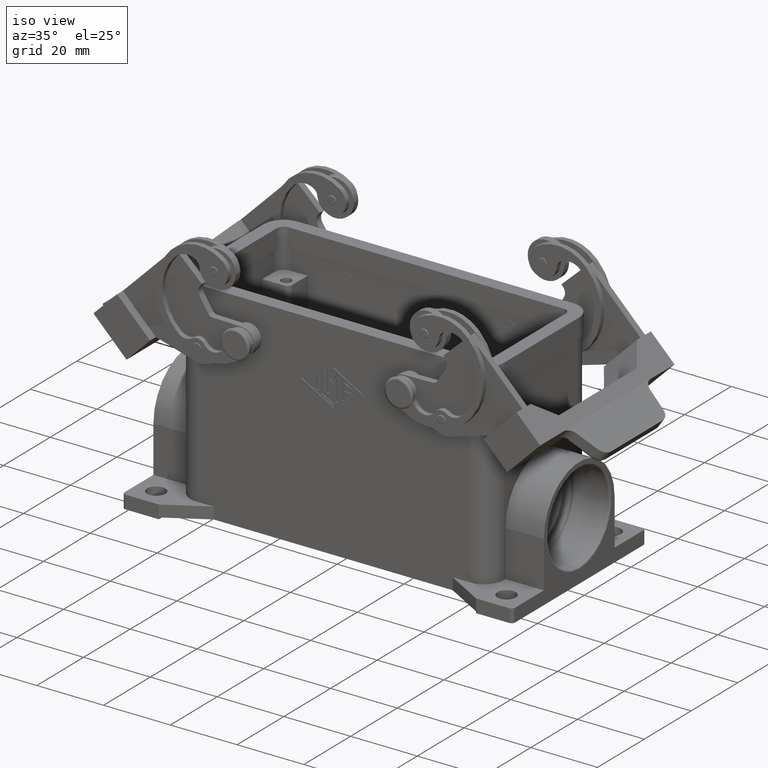
[diagram: clean part render]
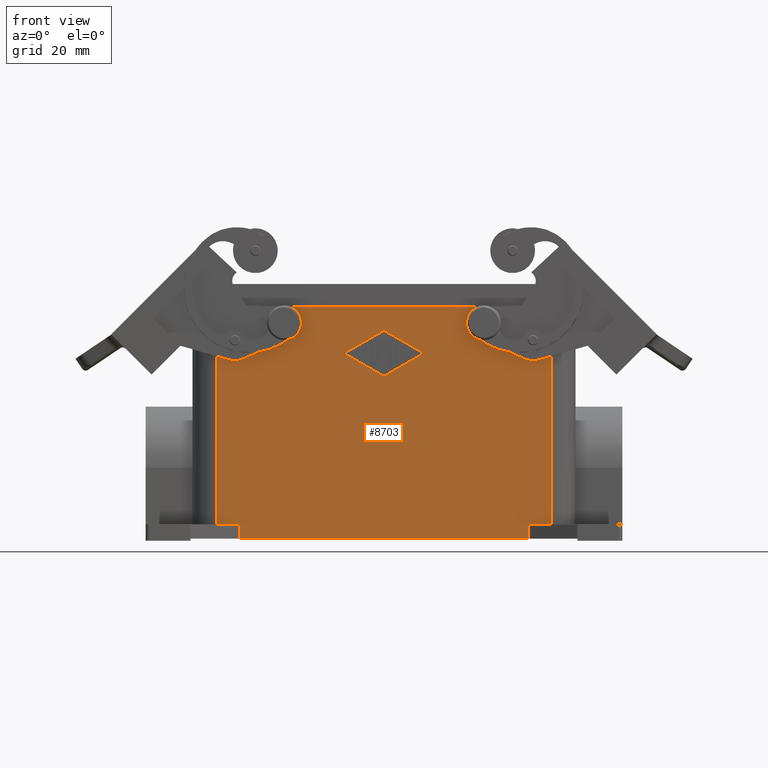
[diagram: tour spotlight — one face highlighted and labeled with its STEP entity id]
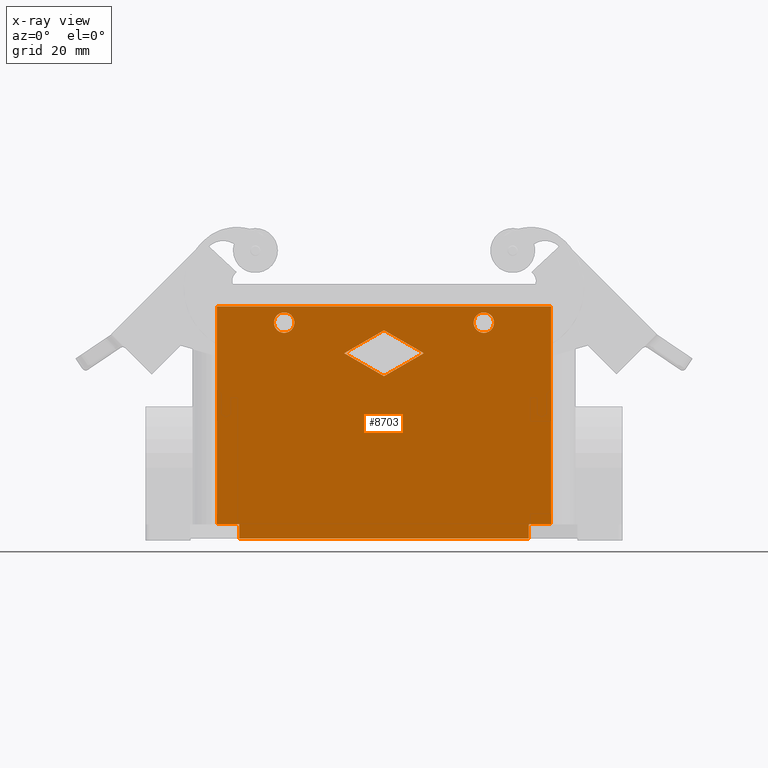
[diagram: x-ray of the same camera — body ghosted, this tour face saturated]
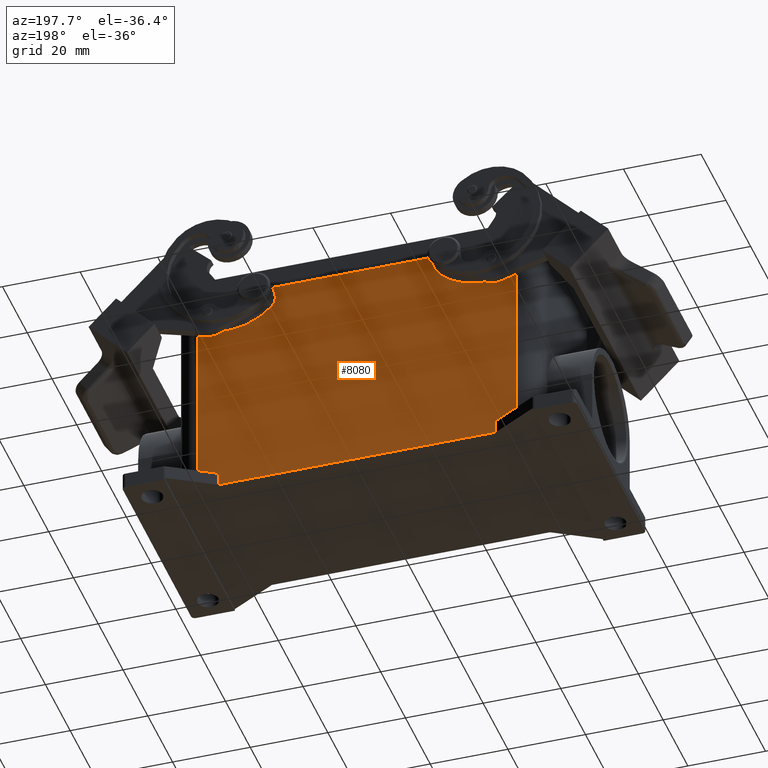
[diagram: tour spotlight — one face highlighted and labeled with its STEP entity id]
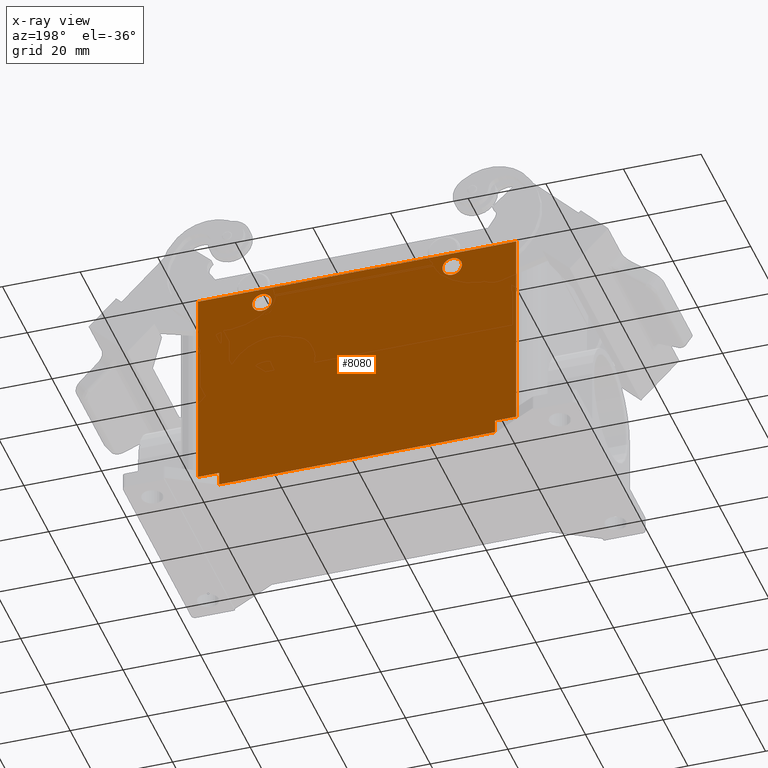
[diagram: x-ray of the same camera — body ghosted, this tour face saturated]
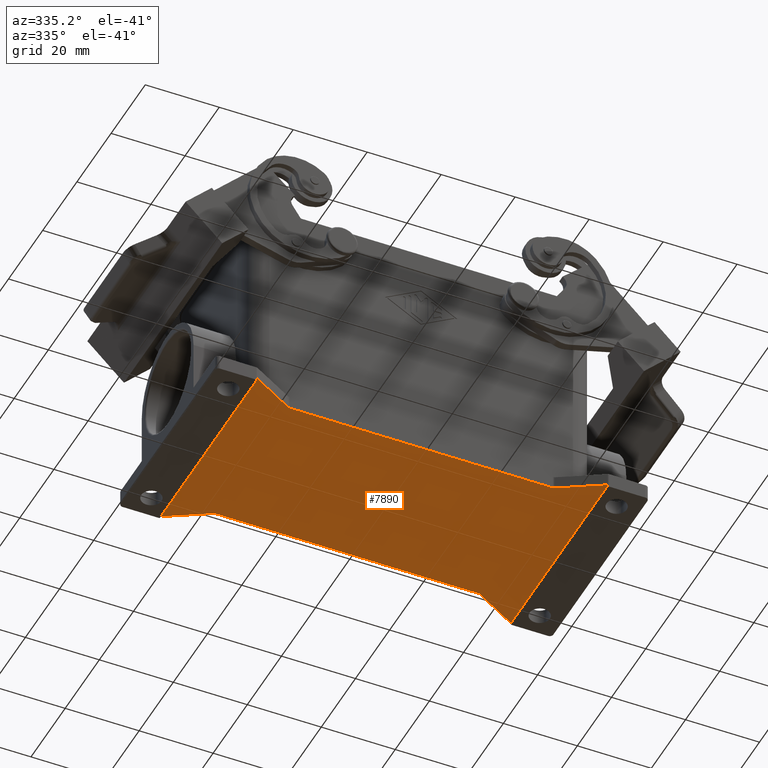
[diagram: tour spotlight — one face highlighted and labeled with its STEP entity id]
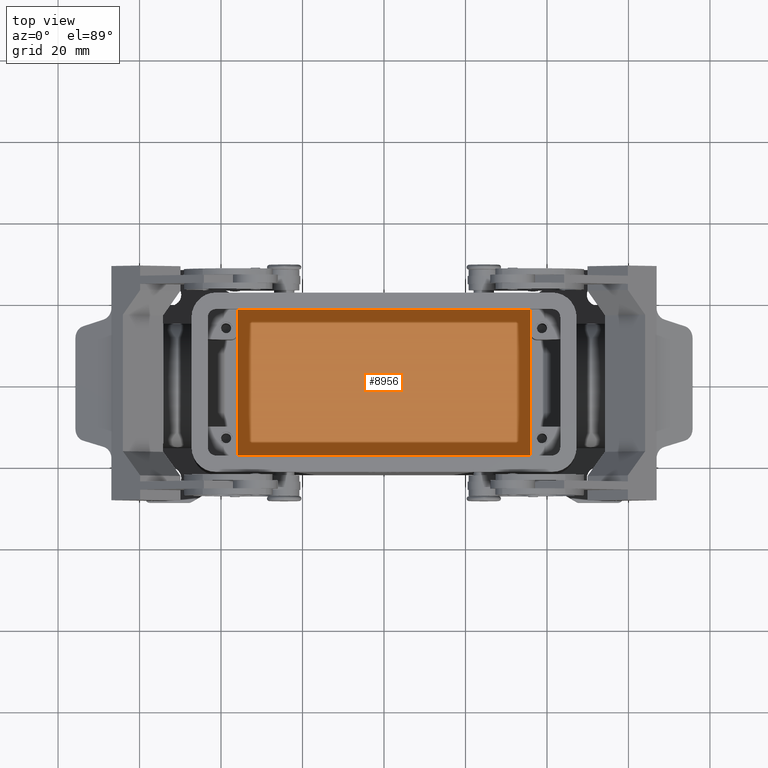
[diagram: tour spotlight — one face highlighted and labeled with its STEP entity id]
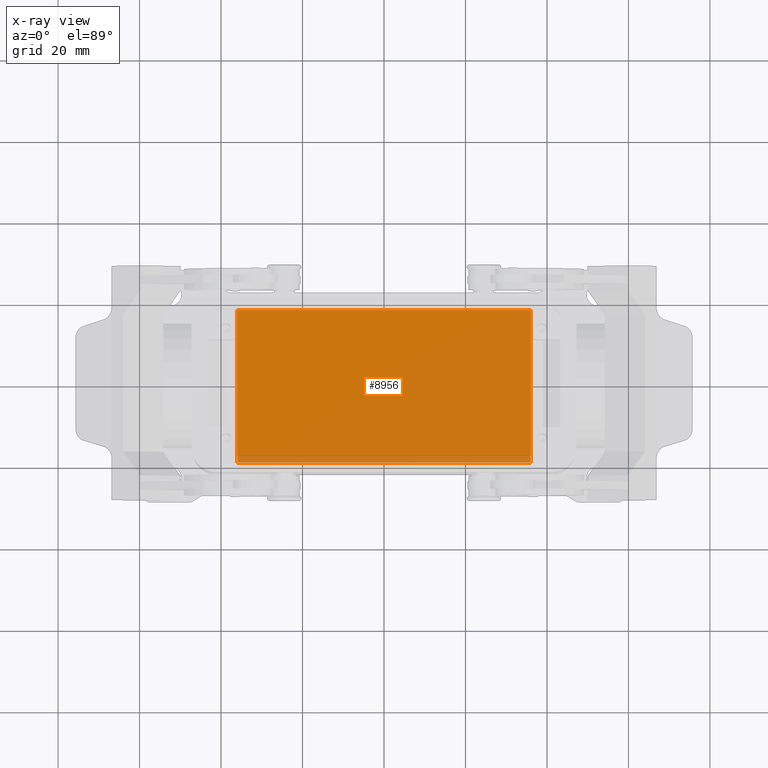
[diagram: x-ray of the same camera — body ghosted, this tour face saturated]
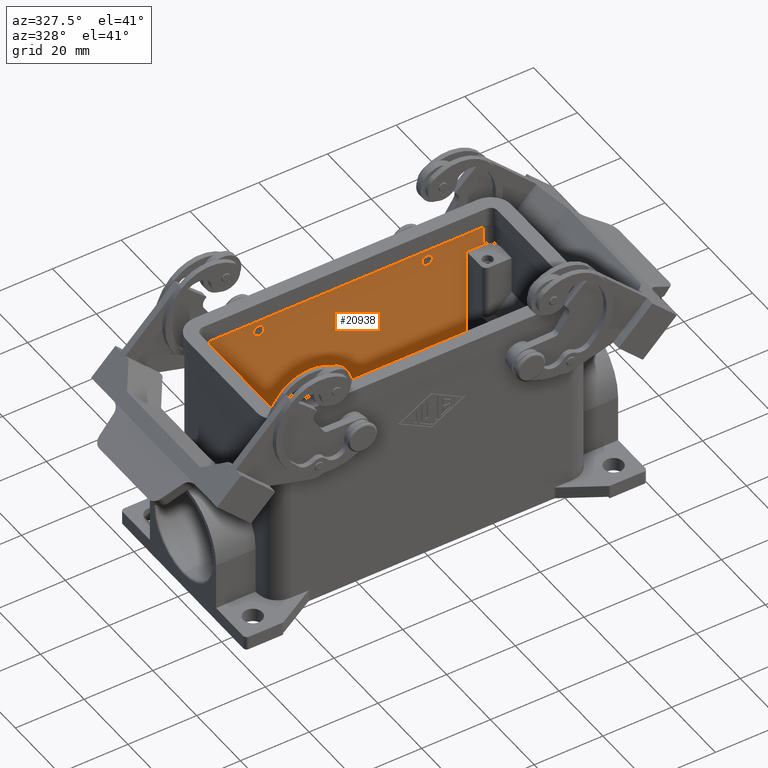
[diagram: tour spotlight — one face highlighted and labeled with its STEP entity id]
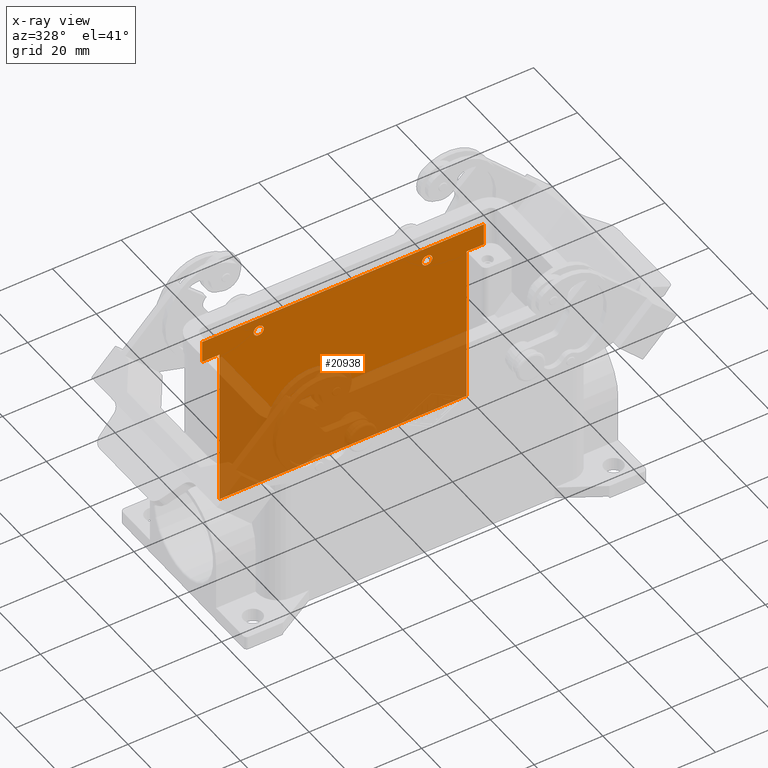
[diagram: x-ray of the same camera — body ghosted, this tour face saturated]
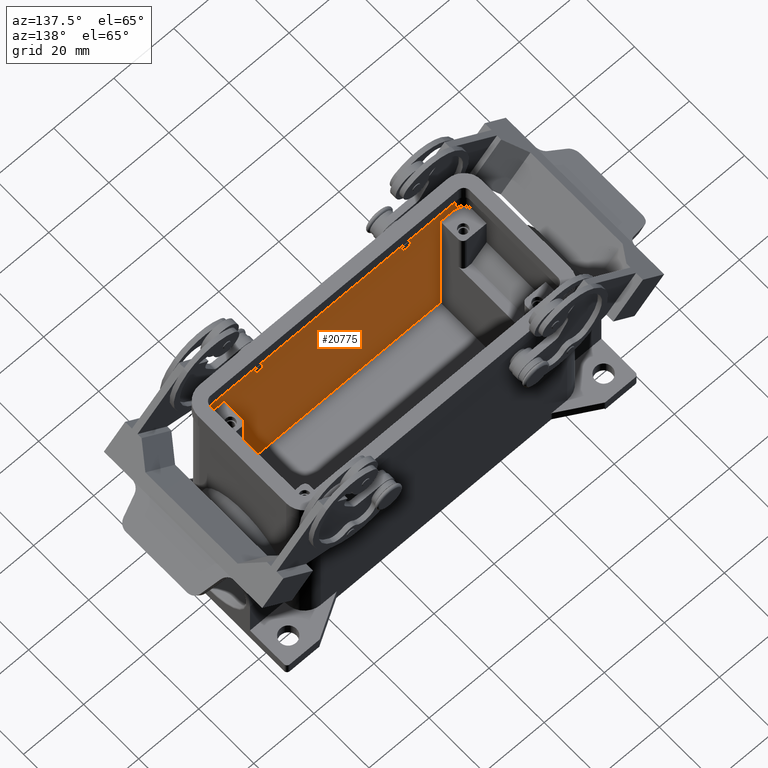
[diagram: tour spotlight — one face highlighted and labeled with its STEP entity id]
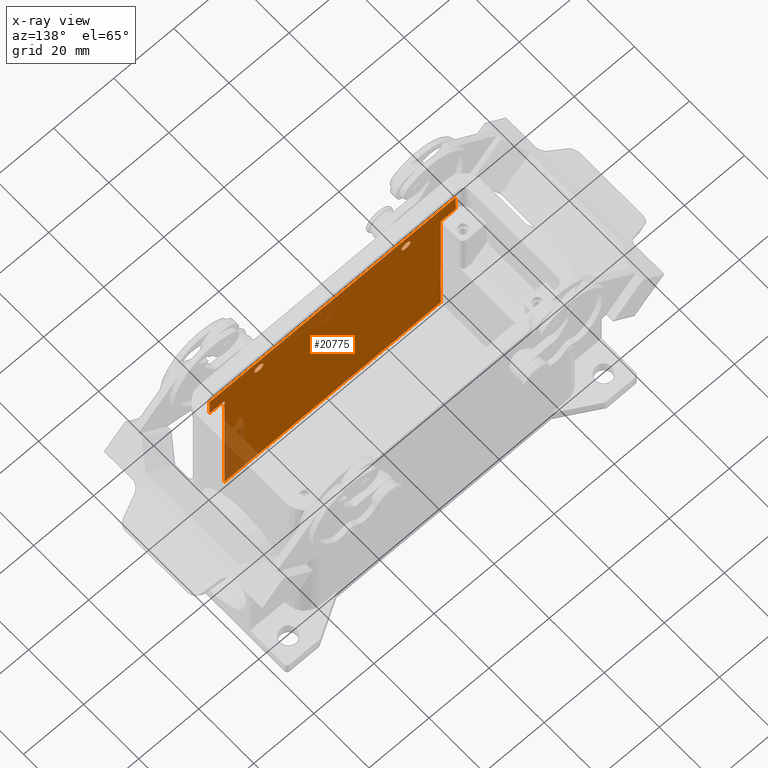
[diagram: x-ray of the same camera — body ghosted, this tour face saturated]
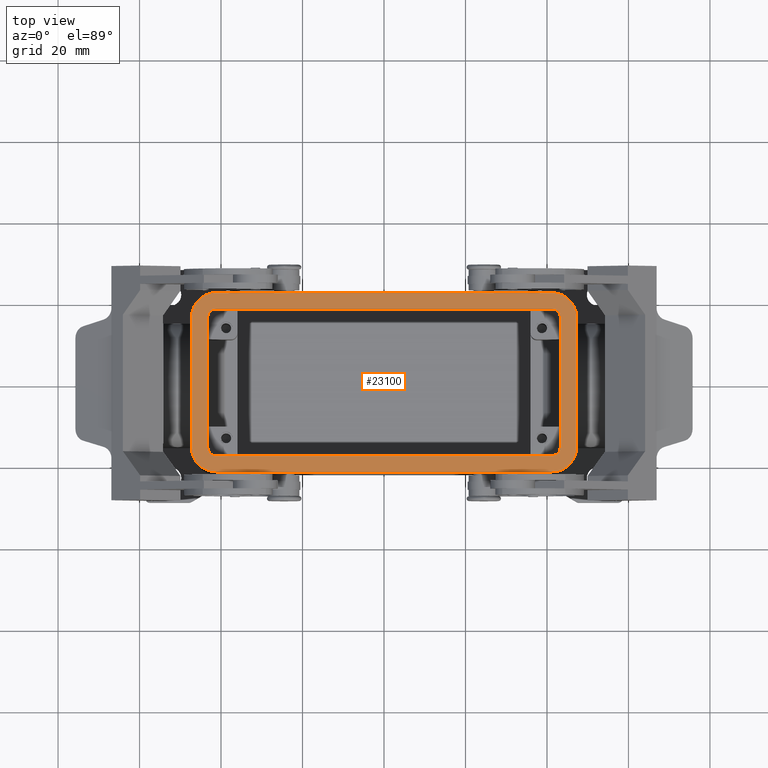
[diagram: tour spotlight — one face highlighted and labeled with its STEP entity id]
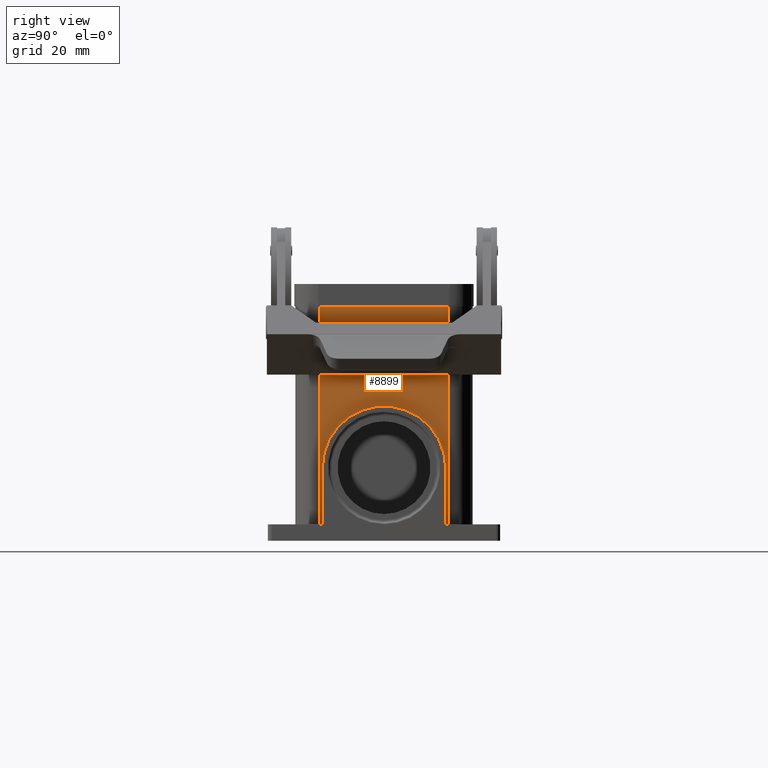
[diagram: tour spotlight — one face highlighted and labeled with its STEP entity id]
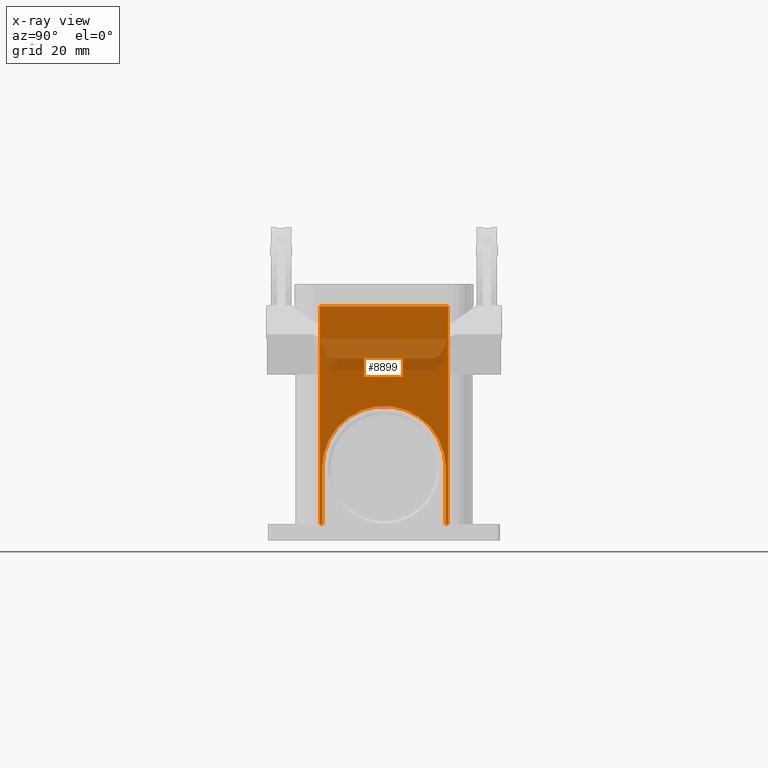
[diagram: x-ray of the same camera — body ghosted, this tour face saturated]
A machine part: a face-by-face anatomy tour. The part has 749 B-rep faces; the first image is the clean iso view, then the 8 largest visible faces are spotlighted one at a time (largest first), each with its STEP entity span.

Face 1 — front view, entity #8703. An x-ray twin of the same camera follows (body ghosted, this face saturated) — the face is partly hidden behind the body. In plain terms, the highlighted planar face has unit normal (0, -1, 0).
Definition (entity closure, byte-faithful):
#1136=CARTESIAN_POINT('',(-24.500000000000000,-21.749999999999986,22.0));
#1137=VERTEX_POINT('',#1136);
#1146=CARTESIAN_POINT('',(-24.500000000000000,-21.749999999999986,17.0));
#1147=VERTEX_POINT('',#1146);
#1148=CARTESIAN_POINT('',(-24.500000000000000,-21.749999999999986,19.500000000000000));
#1149=DIRECTION('',(0.0,1.0,0.0));
#1150=DIRECTION('',(0.0,0.0,1.0));
#1151=AXIS2_PLACEMENT_3D('',#1148,#1149,#1150);
#1152=CIRCLE('',#1151,2.500000000000000);
#1153=EDGE_CURVE('',#1147,#1137,#1152,.T.);
#2407=CARTESIAN_POINT('',(24.500000000000000,-21.749999999999986,22.0));
#2408=VERTEX_POINT('',#2407);
#2417=CARTESIAN_POINT('',(24.500000000000000,-21.749999999999986,17.0));
#2418=VERTEX_POINT('',#2417);
#2419=CARTESIAN_POINT('',(24.500000000000000,-21.749999999999986,19.500000000000000));
#2420=DIRECTION('',(0.0,1.0,0.0));
#2421=DIRECTION('',(0.0,0.0,1.0));
#2422=AXIS2_PLACEMENT_3D('',#2419,#2420,#2421);
#2423=CIRCLE('',#2422,2.500000000000000);
#2424=EDGE_CURVE('',#2418,#2408,#2423,.T.);
#7801=CARTESIAN_POINT('',(35.540707856478939,-21.749999999999979,-33.500000000000007));
#7802=VERTEX_POINT('',#7801);
#7810=CARTESIAN_POINT('',(-35.540707856478946,-21.749999999999993,-33.500000000000007));
#7811=VERTEX_POINT('',#7810);
#7812=CARTESIAN_POINT('',(35.540707856478939,-21.749999999999979,-33.500000000000007));
#7813=DIRECTION('',(-1.0,0.0,0.0));
#7814=VECTOR('',#7813,71.081415712957892);
#7815=LINE('',#7812,#7814);
#7816=EDGE_CURVE('',#7802,#7811,#7815,.T.);
#8481=CARTESIAN_POINT('',(41.0,-21.749999999999989,-30.000000000000004));
#8482=VERTEX_POINT('',#8481);
#8490=CARTESIAN_POINT('',(35.540707856478939,-21.749999999999986,-29.999999999999993));
#8491=VERTEX_POINT('',#8490);
#8492=CARTESIAN_POINT('',(35.540707856478939,-21.749999999999986,-29.999999999999993));
#8493=DIRECTION('',(1.0,0.0,0.0));
#8494=VECTOR('',#8493,5.459292143521061);
#8495=LINE('',#8492,#8494);
#8496=EDGE_CURVE('',#8491,#8482,#8495,.T.);
#8556=CARTESIAN_POINT('',(-35.540707856478953,-21.750000000000000,-29.999999999999993));
#8557=VERTEX_POINT('',#8556);
#8558=CARTESIAN_POINT('',(-35.540707856478946,-21.749999999999993,-33.500000000000007));
#8559=DIRECTION('',(0.0,0.0,1.0));
#8560=VECTOR('',#8559,3.500000000000014);
#8561=LINE('',#8558,#8560);
#8562=EDGE_CURVE('',#7811,#8557,#8561,.T.);
#8598=CARTESIAN_POINT('',(35.540707856478939,-21.749999999999986,-29.999999999999993));
#8599=DIRECTION('',(0.0,0.0,-1.0));
#8600=VECTOR('',#8599,3.500000000000014);
#8601=LINE('',#8598,#8600);
#8602=EDGE_CURVE('',#8491,#7802,#8601,.T.);
#8608=CARTESIAN_POINT('',(41.000000000000007,-21.749999999999986,1.500000000000000));
#8609=DIRECTION('',(0.0,-1.0,0.0));
#8610=DIRECTION('',(0.0,0.0,-1.0));
#8611=AXIS2_PLACEMENT_3D('',#8608,#8609,#8610);
#8612=PLANE('',#8611);
#8613=ORIENTED_EDGE('',*,*,#8562,.F.);
#8614=ORIENTED_EDGE('',*,*,#7816,.F.);
#8615=ORIENTED_EDGE('',*,*,#8602,.F.);
#8616=ORIENTED_EDGE('',*,*,#8496,.T.);
#8617=CARTESIAN_POINT('',(41.000000000000007,-21.749999999999986,23.500000000000000));
#8618=VERTEX_POINT('',#8617);
#8619=CARTESIAN_POINT('',(41.000000000000007,-21.749999999999986,23.500000000000000));
#8620=DIRECTION('',(0.0,0.0,-1.0));
#8621=VECTOR('',#8620,53.500000000000000);
#8622=LINE('',#8619,#8621);
#8623=EDGE_CURVE('',#8618,#8482,#8622,.T.);
#8624=ORIENTED_EDGE('',*,*,#8623,.F.);
#8625=CARTESIAN_POINT('',(-40.999999999999986,-21.750000000000000,23.500000000000000));
#8626=VERTEX_POINT('',#8625);
#8627=CARTESIAN_POINT('',(41.000000000000007,-21.749999999999986,23.500000000000000));
#8628=DIRECTION('',(-1.0,0.0,0.0));
#8629=VECTOR('',#8628,82.0);
#8630=LINE('',#8627,#8629);
#8631=EDGE_CURVE('',#8618,#8626,#8630,.T.);
#8632=ORIENTED_EDGE('',*,*,#8631,.T.);
#8633=CARTESIAN_POINT('',(-41.0,-21.750000000000004,-30.000000000000004));
#8634=VERTEX_POINT('',#8633);
#8635=CARTESIAN_POINT('',(-40.999999999999986,-21.750000000000000,23.500000000000000));
#8636=DIRECTION('',(0.0,0.0,-1.0));
#8637=VECTOR('',#8636,53.500000000000000);
#8638=LINE('',#8635,#8637);
#8639=EDGE_CURVE('',#8626,#8634,#8638,.T.);
#8640=ORIENTED_EDGE('',*,*,#8639,.T.);
#8641=CARTESIAN_POINT('',(-41.0,-21.750000000000004,-30.000000000000004));
#8642=DIRECTION('',(1.0,0.0,0.0));
#8643=VECTOR('',#8642,5.459292143521047);
#8644=LINE('',#8641,#8643);
#8645=EDGE_CURVE('',#8634,#8557,#8644,.T.);
#8646=ORIENTED_EDGE('',*,*,#8645,.T.);
#8647=EDGE_LOOP('',(#8613,#8614,#8615,#8616,#8624,#8632,#8640,#8646));
#8648=FACE_OUTER_BOUND('',#8647,.T.);
#8649=CARTESIAN_POINT('',(1.131257E-015,-21.750000000000000,6.375000000000002));
#8650=VERTEX_POINT('',#8649);
#8651=CARTESIAN_POINT('',(-9.750000000000004,-21.750000000000000,12.000000000000004));
#8652=VERTEX_POINT('',#8651);
#8653=CARTESIAN_POINT('',(1.131257E-015,-21.750000000000000,6.375000000000002));
#8654=DIRECTION('',(-0.866185586048601,0.0,0.499722453489577));
#8655=VECTOR('',#8654,11.256248264852731);
#8656=LINE('',#8653,#8655);
#8657=EDGE_CURVE('',#8650,#8652,#8656,.T.);
#8658=ORIENTED_EDGE('',*,*,#8657,.T.);
#8659=CARTESIAN_POINT('',(1.665536E-016,-21.750000000000000,17.625000000000000));
#8660=VERTEX_POINT('',#8659);
#8661=CARTESIAN_POINT('',(-9.750000000000004,-21.750000000000000,12.000000000000004));
#8662=DIRECTION('',(0.866185586048601,0.0,0.499722453489577));
#8663=VECTOR('',#8662,11.256248264852728);
#8664=LINE('',#8661,#8663);
#8665=EDGE_CURVE('',#8652,#8660,#8664,.T.);
#8666=ORIENTED_EDGE('',*,*,#8665,.T.);
#8667=CARTESIAN_POINT('',(9.749999999999998,-21.750000000000000,12.0));
#8668=VERTEX_POINT('',#8667);
#8669=CARTESIAN_POINT('',(1.665536E-016,-21.750000000000000,17.625000000000000));
#8670=DIRECTION('',(0.866185586048600,0.0,-0.499722453489577));
#8671=VECTOR('',#8670,11.256248264852724);
#8672=LINE('',#8669,#8671);
#8673=EDGE_CURVE('',#8660,#8668,#8672,.T.);
#8674=ORIENTED_EDGE('',*,*,#8673,.T.);
#8675=CARTESIAN_POINT('',(9.749999999999998,-21.750000000000000,12.0));
#8676=DIRECTION('',(-0.866185586048600,0.0,-0.499722453489577));
#8677=VECTOR('',#8676,11.256248264852722);
#8678=LINE('',#8675,#8677);
#8679=EDGE_CURVE('',#8668,#8650,#8678,.T.);
#8680=ORIENTED_EDGE('',*,*,#8679,.T.);
#8681=EDGE_LOOP('',(#8658,#8666,#8674,#8680));
#8682=FACE_BOUND('',#8681,.T.);
#8683=ORIENTED_EDGE('',*,*,#2424,.T.);
#8684=CARTESIAN_POINT('',(24.500000000000000,-21.749999999999986,19.500000000000000));
#8685=DIRECTION('',(0.0,1.0,0.0));
#8686=DIRECTION('',(0.0,0.0,1.0));
#8687=AXIS2_PLACEMENT_3D('',#8684,#8685,#8686);
#8688=CIRCLE('',#8687,2.500000000000000);
#8689=EDGE_CURVE('',#2408,#2418,#8688,.T.);
#8690=ORIENTED_EDGE('',*,*,#8689,.T.);
#8691=EDGE_LOOP('',(#8683,#8690));
#8692=FACE_BOUND('',#8691,.T.);
#8693=ORIENTED_EDGE('',*,*,#1153,.T.);
#8694=CARTESIAN_POINT('',(-24.500000000000000,-21.749999999999986,19.500000000000000));
#8695=DIRECTION('',(0.0,1.0,0.0));
#8696=DIRECTION('',(0.0,0.0,1.0));
#8697=AXIS2_PLACEMENT_3D('',#8694,#8695,#8696);
#8698=CIRCLE('',#8697,2.500000000000000);
#8699=EDGE_CURVE('',#1137,#1147,#8698,.T.);
#8700=ORIENTED_EDGE('',*,*,#8699,.T.);
#8701=EDGE_LOOP('',(#8693,#8700));
#8702=FACE_BOUND('',#8701,.T.);
#8703=ADVANCED_FACE('',(#8648,#8682,#8692,#8702),#8612,.T.);

Face 2 — auxiliary view, entity #8080. An x-ray twin of the same camera follows (body ghosted, this face saturated) — the face is partly hidden behind the body. In plain terms, the highlighted planar face has unit normal (0, 1, 0).
Definition (entity closure, byte-faithful):
#3719=CARTESIAN_POINT('',(24.500000000000000,21.749999999999989,22.0));
#3720=VERTEX_POINT('',#3719);
#3729=CARTESIAN_POINT('',(24.500000000000000,21.749999999999989,17.0));
#3730=VERTEX_POINT('',#3729);
#3731=CARTESIAN_POINT('',(24.500000000000000,21.749999999999989,19.500000000000000));
#3732=DIRECTION('',(0.0,-1.0,0.0));
#3733=DIRECTION('',(0.0,0.0,1.0));
#3734=AXIS2_PLACEMENT_3D('',#3731,#3732,#3733);
#3735=CIRCLE('',#3734,2.500000000000000);
#3736=EDGE_CURVE('',#3730,#3720,#3735,.T.);
#5085=CARTESIAN_POINT('',(-24.500000000000000,21.749999999999989,22.0));
#5086=VERTEX_POINT('',#5085);
#5095=CARTESIAN_POINT('',(-24.500000000000000,21.749999999999989,17.0));
#5096=VERTEX_POINT('',#5095);
#5097=CARTESIAN_POINT('',(-24.500000000000000,21.749999999999989,19.500000000000000));
#5098=DIRECTION('',(0.0,-1.0,0.0));
#5099=DIRECTION('',(0.0,0.0,1.0));
#5100=AXIS2_PLACEMENT_3D('',#5097,#5098,#5099);
#5101=CIRCLE('',#5100,2.500000000000000);
#5102=EDGE_CURVE('',#5096,#5086,#5101,.T.);
#7857=CARTESIAN_POINT('',(-35.540707856478939,21.749999999999986,-33.500000000000007));
#7858=VERTEX_POINT('',#7857);
#7866=CARTESIAN_POINT('',(35.540707856478946,21.750000000000000,-33.500000000000007));
#7867=VERTEX_POINT('',#7866);
#7868=CARTESIAN_POINT('',(-35.540707856478939,21.749999999999986,-33.500000000000007));
#7869=DIRECTION('',(1.0,0.0,0.0));
#7870=VECTOR('',#7869,71.081415712957892);
#7871=LINE('',#7868,#7870);
#7872=EDGE_CURVE('',#7858,#7867,#7871,.T.);
#7986=CARTESIAN_POINT('',(-35.540707856478939,21.749999999999989,-29.999999999999993));
#7987=VERTEX_POINT('',#7986);
#7995=CARTESIAN_POINT('',(-35.540707856478939,21.749999999999989,-29.999999999999993));
#7996=DIRECTION('',(0.0,0.0,-1.0));
#7997=VECTOR('',#7996,3.500000000000014);
#7998=LINE('',#7995,#7997);
#7999=EDGE_CURVE('',#7987,#7858,#7998,.T.);
#8005=CARTESIAN_POINT('',(-41.0,21.749999999999989,1.500000000000000));
#8006=DIRECTION('',(0.0,1.0,0.0));
#8007=DIRECTION('',(0.0,0.0,1.0));
#8008=AXIS2_PLACEMENT_3D('',#8005,#8006,#8007);
#8009=PLANE('',#8008);
#8010=ORIENTED_EDGE('',*,*,#7999,.F.);
#8011=CARTESIAN_POINT('',(-41.0,21.749999999999993,-30.000000000000004));
#8012=VERTEX_POINT('',#8011);
#8013=CARTESIAN_POINT('',(-35.540707856478939,21.749999999999989,-29.999999999999993));
#8014=DIRECTION('',(-1.0,0.0,0.0));
#8015=VECTOR('',#8014,5.459292143521061);
#8016=LINE('',#8013,#8015);
#8017=EDGE_CURVE('',#7987,#8012,#8016,.T.);
#8018=ORIENTED_EDGE('',*,*,#8017,.T.);
#8019=CARTESIAN_POINT('',(-41.0,21.749999999999989,23.500000000000000));
#8020=VERTEX_POINT('',#8019);
#8021=CARTESIAN_POINT('',(-41.0,21.749999999999989,23.500000000000000));
#8022=DIRECTION('',(0.0,0.0,-1.0));
#8023=VECTOR('',#8022,53.500000000000000);
#8024=LINE('',#8021,#8023);
#8025=EDGE_CURVE('',#8020,#8012,#8024,.T.);
#8026=ORIENTED_EDGE('',*,*,#8025,.F.);
#8027=CARTESIAN_POINT('',(41.0,21.750000000000004,23.500000000000000));
#8028=VERTEX_POINT('',#8027);
#8029=CARTESIAN_POINT('',(-41.0,21.749999999999989,23.500000000000000));
#8030=DIRECTION('',(1.0,0.0,0.0));
#8031=VECTOR('',#8030,82.0);
#8032=LINE('',#8029,#8031);
#8033=EDGE_CURVE('',#8020,#8028,#8032,.T.);
#8034=ORIENTED_EDGE('',*,*,#8033,.T.);
#8035=CARTESIAN_POINT('',(41.0,21.750000000000007,-30.000000000000004));
#8036=VERTEX_POINT('',#8035);
#8037=CARTESIAN_POINT('',(41.0,21.750000000000004,23.500000000000000));
#8038=DIRECTION('',(0.0,0.0,-1.0));
#8039=VECTOR('',#8038,53.500000000000000);
#8040=LINE('',#8037,#8039);
#8041=EDGE_CURVE('',#8028,#8036,#8040,.T.);
#8042=ORIENTED_EDGE('',*,*,#8041,.T.);
#8043=CARTESIAN_POINT('',(35.540707856478953,21.750000000000004,-29.999999999999993));
#8044=VERTEX_POINT('',#8043);
#8045=CARTESIAN_POINT('',(41.0,21.750000000000007,-30.000000000000004));
#8046=DIRECTION('',(-1.0,0.0,0.0));
#8047=VECTOR('',#8046,5.459292143521047);
#8048=LINE('',#8045,#8047);
#8049=EDGE_CURVE('',#8036,#8044,#8048,.T.);
#8050=ORIENTED_EDGE('',*,*,#8049,.T.);
#8051=CARTESIAN_POINT('',(35.540707856478946,21.750000000000000,-33.500000000000007));
#8052=DIRECTION('',(0.0,0.0,1.0));
#8053=VECTOR('',#8052,3.500000000000014);
#8054=LINE('',#8051,#8053);
#8055=EDGE_CURVE('',#7867,#8044,#8054,.T.);
#8056=ORIENTED_EDGE('',*,*,#8055,.F.);
#8057=ORIENTED_EDGE('',*,*,#7872,.F.);
#8058=EDGE_LOOP('',(#8010,#8018,#8026,#8034,#8042,#8050,#8056,#8057));
#8059=FACE_OUTER_BOUND('',#8058,.T.);
#8060=ORIENTED_EDGE('',*,*,#5102,.T.);
#8061=CARTESIAN_POINT('',(-24.500000000000000,21.749999999999989,19.500000000000000));
#8062=DIRECTION('',(0.0,-1.0,0.0));
#8063=DIRECTION('',(0.0,0.0,1.0));
#8064=AXIS2_PLACEMENT_3D('',#8061,#8062,#8063);
#8065=CIRCLE('',#8064,2.500000000000000);
#8066=EDGE_CURVE('',#5086,#5096,#8065,.T.);
#8067=ORIENTED_EDGE('',*,*,#8066,.T.);
#8068=EDGE_LOOP('',(#8060,#8067));
#8069=FACE_BOUND('',#8068,.T.);
#8070=ORIENTED_EDGE('',*,*,#3736,.T.);
#8071=CARTESIAN_POINT('',(24.500000000000000,21.749999999999989,19.500000000000000));
#8072=DIRECTION('',(0.0,-1.0,0.0));
#8073=DIRECTION('',(0.0,0.0,1.0));
#8074=AXIS2_PLACEMENT_3D('',#8071,#8072,#8073);
#8075=CIRCLE('',#8074,2.500000000000000);
#8076=EDGE_CURVE('',#3720,#3730,#8075,.T.);
#8077=ORIENTED_EDGE('',*,*,#8076,.T.);
#8078=EDGE_LOOP('',(#8070,#8077));
#8079=FACE_BOUND('',#8078,.T.);
#8080=ADVANCED_FACE('',(#8059,#8069,#8079),#8009,.T.);

Face 3 — auxiliary view, entity #7890. In plain terms, the highlighted planar face has unit normal (0, 0, 1).
Definition (entity closure, byte-faithful):
#6983=CARTESIAN_POINT('',(35.799526901581459,-21.784074173710920,-33.500000000000000));
#6984=VERTEX_POINT('',#6983);
#6993=CARTESIAN_POINT('',(36.040707856478932,-21.883974596215552,-33.500000000000007));
#6994=VERTEX_POINT('',#6993);
#6995=CARTESIAN_POINT('',(35.540707856478939,-22.749999999999989,-33.500000000000007));
#6996=DIRECTION('',(0.0,0.0,-1.0));
#6997=DIRECTION('',(0.258819045102520,0.965925826289069,0.0));
#6998=AXIS2_PLACEMENT_3D('',#6995,#6996,#6997);
#6999=CIRCLE('',#6998,1.0);
#7000=EDGE_CURVE('',#6984,#6994,#6999,.T.);
#7027=CARTESIAN_POINT('',(-35.799526901581473,-21.784074173710930,-33.500000000000000));
#7028=VERTEX_POINT('',#7027);
#7044=CARTESIAN_POINT('',(-36.040707856478953,-21.883974596215559,-33.500000000000007));
#7045=VERTEX_POINT('',#7044);
#7052=CARTESIAN_POINT('',(-35.540707856478953,-22.750000000000000,-33.500000000000007));
#7053=DIRECTION('',(0.0,0.0,-1.0));
#7054=DIRECTION('',(-0.258819045102520,0.965925826289069,0.0));
#7055=AXIS2_PLACEMENT_3D('',#7052,#7053,#7054);
#7056=CIRCLE('',#7055,1.0);
#7057=EDGE_CURVE('',#7045,#7028,#7056,.T.);
#7086=CARTESIAN_POINT('',(-47.500000000000000,-28.463433044002290,-33.500000000000007));
#7087=VERTEX_POINT('',#7086);
#7094=CARTESIAN_POINT('',(-47.267949192431118,-28.366025403784441,-33.500000000000007));
#7095=VERTEX_POINT('',#7094);
#7096=CARTESIAN_POINT('',(-47.767949192431118,-27.500000000000004,-33.500000000000007));
#7097=DIRECTION('',(0.0,0.0,1.000000000000000));
#7098=DIRECTION('',(0.258819045102516,-0.965925826289070,0.0));
#7099=AXIS2_PLACEMENT_3D('',#7096,#7097,#7098);
#7100=CIRCLE('',#7099,1.0);
#7101=EDGE_CURVE('',#7087,#7095,#7100,.T.);
#7338=CARTESIAN_POINT('',(35.799526901581473,21.784074173710930,-33.500000000000000));
#7339=VERTEX_POINT('',#7338);
#7355=CARTESIAN_POINT('',(36.040707856478953,21.883974596215559,-33.500000000000007));
#7356=VERTEX_POINT('',#7355);
#7363=CARTESIAN_POINT('',(35.540707856478953,22.750000000000000,-33.500000000000007));
#7364=DIRECTION('',(0.0,0.0,-1.0));
#7365=DIRECTION('',(0.258819045102520,-0.965925826289069,0.0));
#7366=AXIS2_PLACEMENT_3D('',#7363,#7364,#7365);
#7367=CIRCLE('',#7366,1.0);
#7368=EDGE_CURVE('',#7356,#7339,#7367,.T.);
#7378=CARTESIAN_POINT('',(-35.799526901581459,21.784074173710920,-33.500000000000000));
#7379=VERTEX_POINT('',#7378);
#7388=CARTESIAN_POINT('',(-36.040707856478932,21.883974596215552,-33.500000000000007));
#7389=VERTEX_POINT('',#7388);
#7390=CARTESIAN_POINT('',(-35.540707856478939,22.749999999999989,-33.500000000000007));
#7391=DIRECTION('',(0.0,0.0,-1.0));
#7392=DIRECTION('',(-0.258819045102520,-0.965925826289069,0.0));
#7393=AXIS2_PLACEMENT_3D('',#7390,#7391,#7392);
#7394=CIRCLE('',#7393,1.0);
#7395=EDGE_CURVE('',#7379,#7389,#7394,.T.);
#7439=CARTESIAN_POINT('',(47.499999999999986,28.463433044002286,-33.500000000000007));
#7440=VERTEX_POINT('',#7439);
#7447=CARTESIAN_POINT('',(47.267949192431118,28.366025403784441,-33.500000000000007));
#7448=VERTEX_POINT('',#7447);
#7449=CARTESIAN_POINT('',(47.767949192431118,27.500000000000004,-33.500000000000007));
#7450=DIRECTION('',(0.0,0.0,1.000000000000000));
#7451=DIRECTION('',(-0.258819045102516,0.965925826289070,0.0));
#7452=AXIS2_PLACEMENT_3D('',#7449,#7450,#7451);
#7453=CIRCLE('',#7452,1.0);
#7454=EDGE_CURVE('',#7440,#7448,#7453,.T.);
#7771=CARTESIAN_POINT('',(-2.220446E-015,2.614969E-016,-33.500000000000007));
#7772=DIRECTION('',(0.0,0.0,1.0));
#7773=DIRECTION('',(1.0,0.0,0.0));
#7774=AXIS2_PLACEMENT_3D('',#7771,#7772,#7773);
#7775=PLANE('',#7774);
#7776=ORIENTED_EDGE('',*,*,#7454,.F.);
#7777=CARTESIAN_POINT('',(47.500000000000000,-28.463433044002290,-33.500000000000007));
#7778=VERTEX_POINT('',#7777);
#7779=CARTESIAN_POINT('',(47.500000000000000,-28.463433044002290,-33.500000000000007));
#7780=DIRECTION('',(0.0,1.0,0.0));
#7781=VECTOR('',#7780,56.926866088004573);
#7782=LINE('',#7779,#7781);
#7783=EDGE_CURVE('',#7778,#7440,#7782,.T.);
#7784=ORIENTED_EDGE('',*,*,#7783,.F.);
#7785=CARTESIAN_POINT('',(47.267949192431125,-28.366025403784448,-33.500000000000007));
#7786=VERTEX_POINT('',#7785);
#7787=CARTESIAN_POINT('',(47.767949192431125,-27.500000000000004,-33.500000000000007));
#7788=DIRECTION('',(0.0,0.0,1.0));
#7789=DIRECTION('',(-0.258819045102524,-0.965925826289067,0.0));
#7790=AXIS2_PLACEMENT_3D('',#7787,#7788,#7789);
#7791=CIRCLE('',#7790,1.0);
#7792=EDGE_CURVE('',#7786,#7778,#7791,.T.);
#7793=ORIENTED_EDGE('',*,*,#7792,.F.);
#7794=CARTESIAN_POINT('',(47.267949192431125,-28.366025403784448,-33.500000000000007));
#7795=DIRECTION('',(-0.866025403784438,0.500000000000000,0.0));
#7796=VECTOR('',#7795,12.964101615137787);
#7797=LINE('',#7794,#7796);
#7798=EDGE_CURVE('',#7786,#6994,#7797,.T.);
#7799=ORIENTED_EDGE('',*,*,#7798,.T.);
#7800=ORIENTED_EDGE('',*,*,#7000,.F.);
#7801=CARTESIAN_POINT('',(35.540707856478939,-21.749999999999979,-33.500000000000007));
#7802=VERTEX_POINT('',#7801);
#7803=CARTESIAN_POINT('',(35.540707856478939,-22.749999999999989,-33.500000000000007));
#7804=DIRECTION('',(0.0,0.0,-1.0));
#7805=DIRECTION('',(0.258819045102520,0.965925826289069,0.0));
#7806=AXIS2_PLACEMENT_3D('',#7803,#7804,#7805);
#7807=CIRCLE('',#7806,1.0);
#7808=EDGE_CURVE('',#7802,#6984,#7807,.T.);
#7809=ORIENTED_EDGE('',*,*,#7808,.F.);
#7810=CARTESIAN_POINT('',(-35.540707856478946,-21.749999999999993,-33.500000000000007));
#7811=VERTEX_POINT('',#7810);
#7812=CARTESIAN_POINT('',(35.540707856478939,-21.749999999999979,-33.500000000000007));
#7813=DIRECTION('',(-1.0,0.0,0.0));
#7814=VECTOR('',#7813,71.081415712957892);
#7815=LINE('',#7812,#7814);
#7816=EDGE_CURVE('',#7802,#7811,#7815,.T.);
#7817=ORIENTED_EDGE('',*,*,#7816,.T.);
#7818=CARTESIAN_POINT('',(-35.540707856478953,-22.750000000000000,-33.500000000000007));
#7819=DIRECTION('',(0.0,0.0,-1.0));
#7820=DIRECTION('',(-0.258819045102520,0.965925826289069,0.0));
#7821=AXIS2_PLACEMENT_3D('',#7818,#7819,#7820);
#7822=CIRCLE('',#7821,1.0);
#7823=EDGE_CURVE('',#7028,#7811,#7822,.T.);
#7824=ORIENTED_EDGE('',*,*,#7823,.F.);
#7825=ORIENTED_EDGE('',*,*,#7057,.F.);
#7826=CARTESIAN_POINT('',(-47.267949192431118,-28.366025403784441,-33.500000000000007));
#7827=DIRECTION('',(0.866025403784438,0.500000000000000,0.0));
#7828=VECTOR('',#7827,12.964101615137755);
#7829=LINE('',#7826,#7828);
#7830=EDGE_CURVE('',#7095,#7045,#7829,.T.);
#7831=ORIENTED_EDGE('',*,*,#7830,.F.);
#7832=ORIENTED_EDGE('',*,*,#7101,.F.);
#7833=CARTESIAN_POINT('',(-47.500000000000000,28.463433044002290,-33.500000000000007));
#7834=VERTEX_POINT('',#7833);
#7835=CARTESIAN_POINT('',(-47.500000000000000,-28.463433044002290,-33.500000000000007));
#7836=DIRECTION('',(0.0,1.0,0.0));
#7837=VECTOR('',#7836,56.926866088004580);
#7838=LINE('',#7835,#7837);
#7839=EDGE_CURVE('',#7087,#7834,#7838,.T.);
#7840=ORIENTED_EDGE('',*,*,#7839,.T.);
#7841=CARTESIAN_POINT('',(-47.267949192431125,28.366025403784448,-33.500000000000007));
#7842=VERTEX_POINT('',#7841);
#7843=CARTESIAN_POINT('',(-47.767949192431125,27.500000000000004,-33.500000000000007));
#7844=DIRECTION('',(0.0,0.0,1.0));
#7845=DIRECTION('',(0.258819045102524,0.965925826289067,0.0));
#7846=AXIS2_PLACEMENT_3D('',#7843,#7844,#7845);
#7847=CIRCLE('',#7846,1.0);
#7848=EDGE_CURVE('',#7842,#7834,#7847,.T.);
#7849=ORIENTED_EDGE('',*,*,#7848,.F.);
#7850=CARTESIAN_POINT('',(-47.267949192431125,28.366025403784448,-33.500000000000007));
#7851=DIRECTION('',(0.866025403784438,-0.500000000000000,0.0));
#7852=VECTOR('',#7851,12.964101615137787);
#7853=LINE('',#7850,#7852);
#7854=EDGE_CURVE('',#7842,#7389,#7853,.T.);
#7855=ORIENTED_EDGE('',*,*,#7854,.T.);
#7856=ORIENTED_EDGE('',*,*,#7395,.F.);
#7857=CARTESIAN_POINT('',(-35.540707856478939,21.749999999999986,-33.500000000000007));
#7858=VERTEX_POINT('',#7857);
#7859=CARTESIAN_POINT('',(-35.540707856478939,22.749999999999989,-33.500000000000007));
#7860=DIRECTION('',(0.0,0.0,-1.0));
#7861=DIRECTION('',(-0.258819045102520,-0.965925826289069,0.0));
#7862=AXIS2_PLACEMENT_3D('',#7859,#7860,#7861);
#7863=CIRCLE('',#7862,1.0);
#7864=EDGE_CURVE('',#7858,#7379,#7863,.T.);
#7865=ORIENTED_EDGE('',*,*,#7864,.F.);
#7866=CARTESIAN_POINT('',(35.540707856478946,21.750000000000000,-33.500000000000007));
#7867=VERTEX_POINT('',#7866);
#7868=CARTESIAN_POINT('',(-35.540707856478939,21.749999999999986,-33.500000000000007));
#7869=DIRECTION('',(1.0,0.0,0.0));
#7870=VECTOR('',#7869,71.081415712957892);
#7871=LINE('',#7868,#7870);
#7872=EDGE_CURVE('',#7858,#7867,#7871,.T.);
#7873=ORIENTED_EDGE('',*,*,#7872,.T.);
#7874=CARTESIAN_POINT('',(35.540707856478953,22.750000000000000,-33.500000000000007));
#7875=DIRECTION('',(0.0,0.0,-1.0));
#7876=DIRECTION('',(0.258819045102520,-0.965925826289069,0.0));
#7877=AXIS2_PLACEMENT_3D('',#7874,#7875,#7876);
#7878=CIRCLE('',#7877,1.0);
#7879=EDGE_CURVE('',#7339,#7867,#7878,.T.);
#7880=ORIENTED_EDGE('',*,*,#7879,.F.);
#7881=ORIENTED_EDGE('',*,*,#7368,.F.);
#7882=CARTESIAN_POINT('',(47.267949192431118,28.366025403784441,-33.500000000000007));
#7883=DIRECTION('',(-0.866025403784438,-0.500000000000000,0.0));
#7884=VECTOR('',#7883,12.964101615137755);
#7885=LINE('',#7882,#7884);
#7886=EDGE_CURVE('',#7448,#7356,#7885,.T.);
#7887=ORIENTED_EDGE('',*,*,#7886,.F.);
#7888=EDGE_LOOP('',(#7776,#7784,#7793,#7799,#7800,#7809,#7817,#7824,#7825,#7831,#7832,#7840,#7849,#7855,#7856,#7865,#7873,#7880,#7881,#7887));
#7889=FACE_OUTER_BOUND('',#7888,.T.);
#7890=ADVANCED_FACE('',(#7889),#7775,.F.);

Face 4 — top view, entity #8956. An x-ray twin of the same camera follows (body ghosted, this face saturated) — the face is partly hidden behind the body. In plain terms, the highlighted planar face has unit normal (0, 0, 1).
Definition (entity closure, byte-faithful):
#8917=CARTESIAN_POINT('',(-1.665335E-015,1.110223E-015,-30.000000000000007));
#8918=DIRECTION('',(0.0,0.0,1.0));
#8919=DIRECTION('',(1.0,0.0,0.0));
#8920=AXIS2_PLACEMENT_3D('',#8917,#8918,#8919);
#8921=PLANE('',#8920);
#8922=CARTESIAN_POINT('',(-36.0,-18.749999999999996,-30.000000000000007));
#8923=VERTEX_POINT('',#8922);
#8924=CARTESIAN_POINT('',(36.0,-18.749999999999996,-30.000000000000007));
#8925=VERTEX_POINT('',#8924);
#8926=CARTESIAN_POINT('',(-36.0,-18.749999999999996,-30.000000000000007));
#8927=DIRECTION('',(1.0,0.0,0.0));
#8928=VECTOR('',#8927,72.0);
#8929=LINE('',#8926,#8928);
#8930=EDGE_CURVE('',#8923,#8925,#8929,.T.);
#8931=ORIENTED_EDGE('',*,*,#8930,.T.);
#8932=CARTESIAN_POINT('',(36.0,18.749999999999996,-30.000000000000007));
#8933=VERTEX_POINT('',#8932);
#8934=CARTESIAN_POINT('',(36.0,18.749999999999996,-30.000000000000007));
#8935=DIRECTION('',(0.0,-1.0,0.0));
#8936=VECTOR('',#8935,37.499999999999993);
#8937=LINE('',#8934,#8936);
#8938=EDGE_CURVE('',#8933,#8925,#8937,.T.);
#8939=ORIENTED_EDGE('',*,*,#8938,.F.);
#8940=CARTESIAN_POINT('',(-36.0,18.749999999999996,-30.000000000000007));
#8941=VERTEX_POINT('',#8940);
#8942=CARTESIAN_POINT('',(36.0,18.749999999999996,-30.000000000000007));
#8943=DIRECTION('',(-1.0,0.0,0.0));
#8944=VECTOR('',#8943,72.0);
#8945=LINE('',#8942,#8944);
#8946=EDGE_CURVE('',#8933,#8941,#8945,.T.);
#8947=ORIENTED_EDGE('',*,*,#8946,.T.);
#8948=CARTESIAN_POINT('',(-36.0,-18.749999999999996,-30.000000000000007));
#8949=DIRECTION('',(0.0,1.0,0.0));
#8950=VECTOR('',#8949,37.499999999999993);
#8951=LINE('',#8948,#8950);
#8952=EDGE_CURVE('',#8923,#8941,#8951,.T.);
#8953=ORIENTED_EDGE('',*,*,#8952,.F.);
#8954=EDGE_LOOP('',(#8931,#8939,#8947,#8953));
#8955=FACE_OUTER_BOUND('',#8954,.T.);
#8956=ADVANCED_FACE('',(#8955),#8921,.T.);

Face 5 — auxiliary view, entity #20938. An x-ray twin of the same camera follows (body ghosted, this face saturated) — the face is partly hidden behind the body. In plain terms, the highlighted planar face has unit normal (0, 1, 0).
Definition (entity closure, byte-faithful):
#3763=CARTESIAN_POINT('',(24.500000000000000,18.749999999999993,21.0));
#3764=VERTEX_POINT('',#3763);
#3780=CARTESIAN_POINT('',(24.500000000000000,18.749999999999989,18.000000000000004));
#3781=VERTEX_POINT('',#3780);
#3788=CARTESIAN_POINT('',(24.500000000000000,18.749999999999989,19.500000000000000));
#3789=DIRECTION('',(0.0,1.0,0.0));
#3790=DIRECTION('',(0.0,0.0,1.0));
#3791=AXIS2_PLACEMENT_3D('',#3788,#3789,#3790);
#3792=CIRCLE('',#3791,1.499999999999999);
#3793=EDGE_CURVE('',#3764,#3781,#3792,.T.);
#5159=CARTESIAN_POINT('',(-24.500000000000000,18.749999999999993,21.0));
#5160=VERTEX_POINT('',#5159);
#5176=CARTESIAN_POINT('',(-24.500000000000000,18.749999999999989,18.000000000000004));
#5177=VERTEX_POINT('',#5176);
#5184=CARTESIAN_POINT('',(-24.500000000000000,18.749999999999989,19.500000000000000));
#5185=DIRECTION('',(0.0,1.0,0.0));
#5186=DIRECTION('',(0.0,0.0,1.0));
#5187=AXIS2_PLACEMENT_3D('',#5184,#5185,#5186);
#5188=CIRCLE('',#5187,1.499999999999999);
#5189=EDGE_CURVE('',#5160,#5177,#5188,.T.);
#8932=CARTESIAN_POINT('',(36.0,18.749999999999996,-30.000000000000007));
#8933=VERTEX_POINT('',#8932);
#8940=CARTESIAN_POINT('',(-36.0,18.749999999999996,-30.000000000000007));
#8941=VERTEX_POINT('',#8940);
#8942=CARTESIAN_POINT('',(36.0,18.749999999999996,-30.000000000000007));
#8943=DIRECTION('',(-1.0,0.0,0.0));
#8944=VECTOR('',#8943,72.0);
#8945=LINE('',#8942,#8944);
#8946=EDGE_CURVE('',#8933,#8941,#8945,.T.);
#15063=CARTESIAN_POINT('',(-24.500000000000000,18.749999999999989,19.500000000000000));
#15064=DIRECTION('',(0.0,1.0,0.0));
#15065=DIRECTION('',(0.0,0.0,1.0));
#15066=AXIS2_PLACEMENT_3D('',#15063,#15064,#15065);
#15067=CIRCLE('',#15066,1.499999999999999);
#15068=EDGE_CURVE('',#5177,#5160,#15067,.T.);
#19796=CARTESIAN_POINT('',(24.500000000000000,18.749999999999989,19.500000000000000));
#19797=DIRECTION('',(0.0,1.0,0.0));
#19798=DIRECTION('',(0.0,0.0,1.0));
#19799=AXIS2_PLACEMENT_3D('',#19796,#19797,#19798);
#19800=CIRCLE('',#19799,1.499999999999999);
#19801=EDGE_CURVE('',#3781,#3764,#19800,.T.);
#20464=CARTESIAN_POINT('',(36.0,18.749999999999996,17.0));
#20465=VERTEX_POINT('',#20464);
#20472=CARTESIAN_POINT('',(36.0,18.749999999999996,-30.000000000000007));
#20473=DIRECTION('',(0.0,0.0,1.0));
#20474=VECTOR('',#20473,47.000000000000007);
#20475=LINE('',#20472,#20474);
#20476=EDGE_CURVE('',#8933,#20465,#20475,.T.);
#20649=CARTESIAN_POINT('',(-36.0,18.749999999999996,17.0));
#20650=VERTEX_POINT('',#20649);
#20651=CARTESIAN_POINT('',(-36.0,18.749999999999996,17.0));
#20652=DIRECTION('',(0.0,0.0,-1.0));
#20653=VECTOR('',#20652,47.000000000000007);
#20654=LINE('',#20651,#20653);
#20655=EDGE_CURVE('',#20650,#8941,#20654,.T.);
#20865=CARTESIAN_POINT('',(41.000000000000007,18.749999999999996,17.0));
#20866=VERTEX_POINT('',#20865);
#20874=CARTESIAN_POINT('',(36.0,18.749999999999996,17.0));
#20875=DIRECTION('',(1.0,0.0,0.0));
#20876=VECTOR('',#20875,5.000000000000007);
#20877=LINE('',#20874,#20876);
#20878=EDGE_CURVE('',#20465,#20866,#20877,.T.);
#20889=CARTESIAN_POINT('',(-41.0,18.749999999999989,1.500000000000000));
#20890=DIRECTION('',(0.0,1.0,0.0));
#20891=DIRECTION('',(0.0,0.0,1.0));
#20892=AXIS2_PLACEMENT_3D('',#20889,#20890,#20891);
#20893=PLANE('',#20892);
#20894=ORIENTED_EDGE('',*,*,#20476,.T.);
#20895=ORIENTED_EDGE('',*,*,#20878,.T.);
#20896=CARTESIAN_POINT('',(41.0,18.750000000000004,23.500000000000000));
#20897=VERTEX_POINT('',#20896);
#20898=CARTESIAN_POINT('',(41.000000000000007,18.749999999999996,17.0));
#20899=DIRECTION('',(0.0,0.0,1.0));
#20900=VECTOR('',#20899,6.500000000000000);
#20901=LINE('',#20898,#20900);
#20902=EDGE_CURVE('',#20866,#20897,#20901,.T.);
#20903=ORIENTED_EDGE('',*,*,#20902,.T.);
#20904=CARTESIAN_POINT('',(-41.0,18.749999999999989,23.500000000000000));
#20905=VERTEX_POINT('',#20904);
#20906=CARTESIAN_POINT('',(-41.0,18.749999999999989,23.500000000000000));
#20907=DIRECTION('',(1.0,0.0,0.0));
#20908=VECTOR('',#20907,82.0);
#20909=LINE('',#20906,#20908);
#20910=EDGE_CURVE('',#20905,#20897,#20909,.T.);
#20911=ORIENTED_EDGE('',*,*,#20910,.F.);
#20912=CARTESIAN_POINT('',(-41.000000000000007,18.749999999999996,17.0));
#20913=VERTEX_POINT('',#20912);
#20914=CARTESIAN_POINT('',(-41.000000000000007,18.749999999999996,17.0));
#20915=DIRECTION('',(0.0,0.0,1.0));
#20916=VECTOR('',#20915,6.500000000000000);
#20917=LINE('',#20914,#20916);
#20918=EDGE_CURVE('',#20913,#20905,#20917,.T.);
#20919=ORIENTED_EDGE('',*,*,#20918,.F.);
#20920=CARTESIAN_POINT('',(-41.000000000000007,18.749999999999996,17.0));
#20921=DIRECTION('',(1.0,0.0,0.0));
#20922=VECTOR('',#20921,5.000000000000007);
#20923=LINE('',#20920,#20922);
#20924=EDGE_CURVE('',#20913,#20650,#20923,.T.);
#20925=ORIENTED_EDGE('',*,*,#20924,.T.);
#20926=ORIENTED_EDGE('',*,*,#20655,.T.);
#20927=ORIENTED_EDGE('',*,*,#8946,.F.);
#20928=EDGE_LOOP('',(#20894,#20895,#20903,#20911,#20919,#20925,#20926,#20927));
#20929=FACE_OUTER_BOUND('',#20928,.T.);
#20930=ORIENTED_EDGE('',*,*,#15068,.T.);
#20931=ORIENTED_EDGE('',*,*,#5189,.T.);
#20932=EDGE_LOOP('',(#20930,#20931));
#20933=FACE_BOUND('',#20932,.T.);
#20934=ORIENTED_EDGE('',*,*,#19801,.T.);
#20935=ORIENTED_EDGE('',*,*,#3793,.T.);
#20936=EDGE_LOOP('',(#20934,#20935));
#20937=FACE_BOUND('',#20936,.T.);
#20938=ADVANCED_FACE('',(#20929,#20933,#20937),#20893,.F.);

Face 6 — auxiliary view, entity #20775. An x-ray twin of the same camera follows (body ghosted, this face saturated) — the face is partly hidden behind the body. In plain terms, the highlighted planar face has unit normal (0, -1, 0).
Definition (entity closure, byte-faithful):
#1096=CARTESIAN_POINT('',(-24.500000000000000,-18.749999999999993,21.0));
#1097=VERTEX_POINT('',#1096);
#1113=CARTESIAN_POINT('',(-24.500000000000000,-18.749999999999996,18.000000000000004));
#1114=VERTEX_POINT('',#1113);
#1121=CARTESIAN_POINT('',(-24.500000000000000,-18.749999999999996,19.500000000000000));
#1122=DIRECTION('',(0.0,-1.0,0.0));
#1123=DIRECTION('',(0.0,0.0,1.0));
#1124=AXIS2_PLACEMENT_3D('',#1121,#1122,#1123);
#1125=CIRCLE('',#1124,1.499999999999999);
#1126=EDGE_CURVE('',#1097,#1114,#1125,.T.);
#2346=CARTESIAN_POINT('',(24.500000000000000,-18.749999999999993,21.0));
#2347=VERTEX_POINT('',#2346);
#2363=CARTESIAN_POINT('',(24.500000000000000,-18.749999999999996,18.000000000000004));
#2364=VERTEX_POINT('',#2363);
#2371=CARTESIAN_POINT('',(24.500000000000000,-18.749999999999996,19.500000000000000));
#2372=DIRECTION('',(0.0,-1.0,0.0));
#2373=DIRECTION('',(0.0,0.0,1.0));
#2374=AXIS2_PLACEMENT_3D('',#2371,#2372,#2373);
#2375=CIRCLE('',#2374,1.499999999999999);
#2376=EDGE_CURVE('',#2347,#2364,#2375,.T.);
#8922=CARTESIAN_POINT('',(-36.0,-18.749999999999996,-30.000000000000007));
#8923=VERTEX_POINT('',#8922);
#8924=CARTESIAN_POINT('',(36.0,-18.749999999999996,-30.000000000000007));
#8925=VERTEX_POINT('',#8924);
#8926=CARTESIAN_POINT('',(-36.0,-18.749999999999996,-30.000000000000007));
#8927=DIRECTION('',(1.0,0.0,0.0));
#8928=VECTOR('',#8927,72.0);
#8929=LINE('',#8926,#8928);
#8930=EDGE_CURVE('',#8923,#8925,#8929,.T.);
#20440=CARTESIAN_POINT('',(36.0,-18.749999999999996,17.0));
#20441=VERTEX_POINT('',#20440);
#20442=CARTESIAN_POINT('',(36.0,-18.749999999999996,17.0));
#20443=DIRECTION('',(0.0,0.0,-1.0));
#20444=VECTOR('',#20443,47.000000000000007);
#20445=LINE('',#20442,#20444);
#20446=EDGE_CURVE('',#20441,#8925,#20445,.T.);
#20518=CARTESIAN_POINT('',(41.000000000000007,-18.749999999999996,17.0));
#20519=VERTEX_POINT('',#20518);
#20520=CARTESIAN_POINT('',(41.000000000000007,-18.749999999999996,17.0));
#20521=DIRECTION('',(-1.0,0.0,0.0));
#20522=VECTOR('',#20521,5.000000000000007);
#20523=LINE('',#20520,#20522);
#20524=EDGE_CURVE('',#20519,#20441,#20523,.T.);
#20673=CARTESIAN_POINT('',(-36.0,-18.749999999999996,17.0));
#20674=VERTEX_POINT('',#20673);
#20681=CARTESIAN_POINT('',(-36.0,-18.749999999999996,-30.000000000000007));
#20682=DIRECTION('',(0.0,0.0,1.0));
#20683=VECTOR('',#20682,47.000000000000007);
#20684=LINE('',#20681,#20683);
#20685=EDGE_CURVE('',#8923,#20674,#20684,.T.);
#20697=CARTESIAN_POINT('',(-41.000000000000007,-18.749999999999996,17.0));
#20698=VERTEX_POINT('',#20697);
#20706=CARTESIAN_POINT('',(-36.0,-18.749999999999996,17.0));
#20707=DIRECTION('',(-1.0,0.0,0.0));
#20708=VECTOR('',#20707,5.000000000000007);
#20709=LINE('',#20706,#20708);
#20710=EDGE_CURVE('',#20674,#20698,#20709,.T.);
#20721=CARTESIAN_POINT('',(41.0,-18.749999999999996,1.500000000000000));
#20722=DIRECTION('',(0.0,-1.0,0.0));
#20723=DIRECTION('',(0.0,0.0,-1.0));
#20724=AXIS2_PLACEMENT_3D('',#20721,#20722,#20723);
#20725=PLANE('',#20724);
#20726=ORIENTED_EDGE('',*,*,#20446,.T.);
#20727=ORIENTED_EDGE('',*,*,#8930,.F.);
#20728=ORIENTED_EDGE('',*,*,#20685,.T.);
#20729=ORIENTED_EDGE('',*,*,#20710,.T.);
#20730=CARTESIAN_POINT('',(-41.0,-18.750000000000014,23.500000000000000));
#20731=VERTEX_POINT('',#20730);
#20732=CARTESIAN_POINT('',(-41.000000000000007,-18.749999999999996,17.0));
#20733=DIRECTION('',(0.0,0.0,1.0));
#20734=VECTOR('',#20733,6.500000000000000);
#20735=LINE('',#20732,#20734);
#20736=EDGE_CURVE('',#20698,#20731,#20735,.T.);
#20737=ORIENTED_EDGE('',*,*,#20736,.T.);
#20738=CARTESIAN_POINT('',(41.0,-18.749999999999996,23.500000000000000));
#20739=VERTEX_POINT('',#20738);
#20740=CARTESIAN_POINT('',(41.0,-18.749999999999996,23.500000000000000));
#20741=DIRECTION('',(-1.0,0.0,0.0));
#20742=VECTOR('',#20741,82.0);
#20743=LINE('',#20740,#20742);
#20744=EDGE_CURVE('',#20739,#20731,#20743,.T.);
#20745=ORIENTED_EDGE('',*,*,#20744,.F.);
#20746=CARTESIAN_POINT('',(41.000000000000007,-18.749999999999996,17.0));
#20747=DIRECTION('',(0.0,0.0,1.0));
#20748=VECTOR('',#20747,6.500000000000000);
#20749=LINE('',#20746,#20748);
#20750=EDGE_CURVE('',#20519,#20739,#20749,.T.);
#20751=ORIENTED_EDGE('',*,*,#20750,.F.);
#20752=ORIENTED_EDGE('',*,*,#20524,.T.);
#20753=EDGE_LOOP('',(#20726,#20727,#20728,#20729,#20737,#20745,#20751,#20752));
#20754=FACE_OUTER_BOUND('',#20753,.T.);
#20755=CARTESIAN_POINT('',(-24.500000000000000,-18.749999999999996,19.500000000000000));
#20756=DIRECTION('',(0.0,-1.0,0.0));
#20757=DIRECTION('',(0.0,0.0,1.0));
#20758=AXIS2_PLACEMENT_3D('',#20755,#20756,#20757);
#20759=CIRCLE('',#20758,1.499999999999999);
#20760=EDGE_CURVE('',#1114,#1097,#20759,.T.);
#20761=ORIENTED_EDGE('',*,*,#20760,.T.);
#20762=ORIENTED_EDGE('',*,*,#1126,.T.);
#20763=EDGE_LOOP('',(#20761,#20762));
#20764=FACE_BOUND('',#20763,.T.);
#20765=CARTESIAN_POINT('',(24.500000000000000,-18.749999999999996,19.500000000000000));
#20766=DIRECTION('',(0.0,-1.0,0.0));
#20767=DIRECTION('',(0.0,0.0,1.0));
#20768=AXIS2_PLACEMENT_3D('',#20765,#20766,#20767);
#20769=CIRCLE('',#20768,1.499999999999999);
#20770=EDGE_CURVE('',#2364,#2347,#20769,.T.);
#20771=ORIENTED_EDGE('',*,*,#20770,.T.);
#20772=ORIENTED_EDGE('',*,*,#2376,.T.);
#20773=EDGE_LOOP('',(#20771,#20772));
#20774=FACE_BOUND('',#20773,.T.);
#20775=ADVANCED_FACE('',(#20754,#20764,#20774),#20725,.F.);

Face 7 — top view, entity #23100. In plain terms, the highlighted planar face has unit normal (0, 0, 1).
Definition (entity closure, byte-faithful):
#22688=CARTESIAN_POINT('',(41.250000000000000,18.0,29.000000000000007));
#22689=VERTEX_POINT('',#22688);
#22690=CARTESIAN_POINT('',(43.250000000000014,15.999999999999996,29.000000000000007));
#22691=VERTEX_POINT('',#22690);
#22692=CARTESIAN_POINT('',(41.250000000000000,15.999999999999996,29.000000000000004));
#22693=DIRECTION('',(0.0,0.0,-1.0));
#22694=DIRECTION('',(1.0,0.0,0.0));
#22695=AXIS2_PLACEMENT_3D('',#22692,#22693,#22694);
#22696=CIRCLE('',#22695,2.000000000000001);
#22697=EDGE_CURVE('',#22689,#22691,#22696,.T.);
#22720=CARTESIAN_POINT('',(43.250000000000014,-15.999999999999996,29.000000000000007));
#22721=VERTEX_POINT('',#22720);
#22722=CARTESIAN_POINT('',(43.250000000000014,15.999999999999996,29.000000000000007));
#22723=DIRECTION('',(0.0,-1.0,0.0));
#22724=VECTOR('',#22723,31.999999999999993);
#22725=LINE('',#22722,#22724);
#22726=EDGE_CURVE('',#22691,#22721,#22725,.T.);
#22744=CARTESIAN_POINT('',(41.250000000000007,-18.000000000000004,29.000000000000007));
#22745=VERTEX_POINT('',#22744);
#22746=CARTESIAN_POINT('',(41.250000000000000,-15.999999999999996,29.000000000000004));
#22747=DIRECTION('',(0.0,0.0,-1.0));
#22748=DIRECTION('',(0.0,-1.0,0.0));
#22749=AXIS2_PLACEMENT_3D('',#22746,#22747,#22748);
#22750=CIRCLE('',#22749,2.000000000000000);
#22751=EDGE_CURVE('',#22721,#22745,#22750,.T.);
#22769=CARTESIAN_POINT('',(-41.250000000000007,-18.000000000000004,29.000000000000007));
#22770=VERTEX_POINT('',#22769);
#22771=CARTESIAN_POINT('',(41.250000000000007,-18.000000000000004,29.000000000000007));
#22772=DIRECTION('',(-1.0,0.0,0.0));
#22773=VECTOR('',#22772,82.500000000000014);
#22774=LINE('',#22771,#22773);
#22775=EDGE_CURVE('',#22745,#22770,#22774,.T.);
#22793=CARTESIAN_POINT('',(-43.250000000000021,-15.999999999999996,29.000000000000007));
#22794=VERTEX_POINT('',#22793);
#22795=CARTESIAN_POINT('',(-41.250000000000007,-15.999999999999996,29.000000000000004));
#22796=DIRECTION('',(0.0,0.0,-1.0));
#22797=DIRECTION('',(-1.0,0.0,0.0));
#22798=AXIS2_PLACEMENT_3D('',#22795,#22796,#22797);
#22799=CIRCLE('',#22798,2.000000000000001);
#22800=EDGE_CURVE('',#22770,#22794,#22799,.T.);
#22818=CARTESIAN_POINT('',(-43.250000000000021,15.999999999999996,29.000000000000007));
#22819=VERTEX_POINT('',#22818);
#22820=CARTESIAN_POINT('',(-43.250000000000021,-15.999999999999996,29.000000000000007));
#22821=DIRECTION('',(0.0,1.0,0.0));
#22822=VECTOR('',#22821,31.999999999999993);
#22823=LINE('',#22820,#22822);
#22824=EDGE_CURVE('',#22794,#22819,#22823,.T.);
#22842=CARTESIAN_POINT('',(-41.250000000000000,18.0,29.000000000000007));
#22843=VERTEX_POINT('',#22842);
#22844=CARTESIAN_POINT('',(-41.250000000000000,15.999999999999996,29.000000000000004));
#22845=DIRECTION('',(0.0,0.0,-1.0));
#22846=DIRECTION('',(0.0,1.0,0.0));
#22847=AXIS2_PLACEMENT_3D('',#22844,#22845,#22846);
#22848=CIRCLE('',#22847,2.000000000000001);
#22849=EDGE_CURVE('',#22819,#22843,#22848,.T.);
#22867=CARTESIAN_POINT('',(-41.250000000000000,18.0,29.000000000000007));
#22868=DIRECTION('',(1.0,0.0,0.0));
#22869=VECTOR('',#22868,82.500000000000000);
#22870=LINE('',#22867,#22869);
#22871=EDGE_CURVE('',#22843,#22689,#22870,.T.);
#22884=CARTESIAN_POINT('',(41.250000000000000,21.999999999999996,29.000000000000004));
#22885=VERTEX_POINT('',#22884);
#22886=CARTESIAN_POINT('',(47.250000000000007,15.999999999999996,29.000000000000004));
#22887=VERTEX_POINT('',#22886);
#22888=CARTESIAN_POINT('',(41.250000000000000,15.999999999999996,29.000000000000004));
#22889=DIRECTION('',(0.0,0.0,-1.0));
#22890=DIRECTION('',(-1.0,0.0,0.0));
#22891=AXIS2_PLACEMENT_3D('',#22888,#22889,#22890);
#22892=CIRCLE('',#22891,6.000000000000001);
#22893=EDGE_CURVE('',#22885,#22887,#22892,.T.);
#22916=CARTESIAN_POINT('',(47.250000000000007,-15.999999999999996,29.000000000000004));
#22917=VERTEX_POINT('',#22916);
#22918=CARTESIAN_POINT('',(47.250000000000007,15.999999999999996,29.000000000000004));
#22919=DIRECTION('',(0.0,-1.0,0.0));
#22920=VECTOR('',#22919,31.999999999999993);
#22921=LINE('',#22918,#22920);
#22922=EDGE_CURVE('',#22887,#22917,#22921,.T.);
#22940=CARTESIAN_POINT('',(41.250000000000000,-21.999999999999996,29.000000000000004));
#22941=VERTEX_POINT('',#22940);
#22942=CARTESIAN_POINT('',(41.250000000000000,-15.999999999999996,29.000000000000004));
#22943=DIRECTION('',(0.0,0.0,-1.0));
#22944=DIRECTION('',(0.0,1.0,0.0));
#22945=AXIS2_PLACEMENT_3D('',#22942,#22943,#22944);
#22946=CIRCLE('',#22945,6.000000000000001);
#22947=EDGE_CURVE('',#22917,#22941,#22946,.T.);
#22965=CARTESIAN_POINT('',(-41.250000000000007,-21.999999999999996,29.000000000000004));
#22966=VERTEX_POINT('',#22965);
#22967=CARTESIAN_POINT('',(41.250000000000000,-21.999999999999996,29.000000000000004));
#22968=DIRECTION('',(-1.0,0.0,0.0));
#22969=VECTOR('',#22968,82.500000000000000);
#22970=LINE('',#22967,#22969);
#22971=EDGE_CURVE('',#22941,#22966,#22970,.T.);
#22989=CARTESIAN_POINT('',(-47.250000000000007,-15.999999999999996,29.000000000000004));
#22990=VERTEX_POINT('',#22989);
#22991=CARTESIAN_POINT('',(-41.250000000000007,-15.999999999999996,29.000000000000004));
#22992=DIRECTION('',(0.0,0.0,-1.0));
#22993=DIRECTION('',(1.0,0.0,0.0));
#22994=AXIS2_PLACEMENT_3D('',#22991,#22992,#22993);
#22995=CIRCLE('',#22994,6.000000000000001);
#22996=EDGE_CURVE('',#22966,#22990,#22995,.T.);
#23014=CARTESIAN_POINT('',(-47.250000000000007,15.999999999999996,29.000000000000004));
#23015=VERTEX_POINT('',#23014);
#23016=CARTESIAN_POINT('',(-47.250000000000007,-15.999999999999996,29.000000000000004));
#23017=DIRECTION('',(0.0,1.0,0.0));
#23018=VECTOR('',#23017,31.999999999999993);
#23019=LINE('',#23016,#23018);
#23020=EDGE_CURVE('',#22990,#23015,#23019,.T.);
#23038=CARTESIAN_POINT('',(-41.250000000000000,21.999999999999996,29.000000000000004));
#23039=VERTEX_POINT('',#23038);
#23040=CARTESIAN_POINT('',(-41.250000000000000,15.999999999999996,29.000000000000004));
#23041=DIRECTION('',(0.0,0.0,-1.0));
#23042=DIRECTION('',(0.0,-1.0,0.0));
#23043=AXIS2_PLACEMENT_3D('',#23040,#23041,#23042);
#23044=CIRCLE('',#23043,6.000000000000001);
#23045=EDGE_CURVE('',#23015,#23039,#23044,.T.);
#23063=CARTESIAN_POINT('',(-41.250000000000000,21.999999999999996,29.000000000000004));
#23064=DIRECTION('',(1.0,0.0,0.0));
#23065=VECTOR('',#23064,82.500000000000000);
#23066=LINE('',#23063,#23065);
#23067=EDGE_CURVE('',#23039,#22885,#23066,.T.);
#23075=CARTESIAN_POINT('',(-8.326673E-016,9.714451E-016,29.000000000000004));
#23076=DIRECTION('',(0.0,0.0,1.0));
#23077=DIRECTION('',(1.0,0.0,0.0));
#23078=AXIS2_PLACEMENT_3D('',#23075,#23076,#23077);
#23079=PLANE('',#23078);
#23080=ORIENTED_EDGE('',*,*,#22893,.F.);
#23081=ORIENTED_EDGE('',*,*,#23067,.F.);
#23082=ORIENTED_EDGE('',*,*,#23045,.F.);
#23083=ORIENTED_EDGE('',*,*,#23020,.F.);
#23084=ORIENTED_EDGE('',*,*,#22996,.F.);
#23085=ORIENTED_EDGE('',*,*,#22971,.F.);
#23086=ORIENTED_EDGE('',*,*,#22947,.F.);
#23087=ORIENTED_EDGE('',*,*,#22922,.F.);
#23088=EDGE_LOOP('',(#23080,#23081,#23082,#23083,#23084,#23085,#23086,#23087));
#23089=FACE_OUTER_BOUND('',#23088,.T.);
#23090=ORIENTED_EDGE('',*,*,#22697,.T.);
#23091=ORIENTED_EDGE('',*,*,#22726,.T.);
#23092=ORIENTED_EDGE('',*,*,#22751,.T.);
#23093=ORIENTED_EDGE('',*,*,#22775,.T.);
#23094=ORIENTED_EDGE('',*,*,#22800,.T.);
#23095=ORIENTED_EDGE('',*,*,#22824,.T.);
#23096=ORIENTED_EDGE('',*,*,#22849,.T.);
#23097=ORIENTED_EDGE('',*,*,#22871,.T.);
#23098=EDGE_LOOP('',(#23090,#23091,#23092,#23093,#23094,#23095,#23096,#23097));
#23099=FACE_BOUND('',#23098,.T.);
#23100=ADVANCED_FACE('',(#23089,#23099),#23079,.T.);

Face 8 — right view, entity #8899. An x-ray twin of the same camera follows (body ghosted, this face saturated) — the face is partly hidden behind the body. In plain terms, the highlighted planar face has unit normal (1, 0, 0).
Definition (entity closure, byte-faithful):
#8465=CARTESIAN_POINT('',(46.999999999999993,-15.140000000000002,-30.000000000000004));
#8466=VERTEX_POINT('',#8465);
#8473=CARTESIAN_POINT('',(47.000000000000014,-15.750000000000000,-30.000000000000004));
#8474=VERTEX_POINT('',#8473);
#8475=CARTESIAN_POINT('',(47.000000000000014,-15.750000000000000,-30.000000000000004));
#8476=DIRECTION('',(0.0,1.0,0.0));
#8477=VECTOR('',#8476,0.609999999999998);
#8478=LINE('',#8475,#8477);
#8479=EDGE_CURVE('',#8474,#8466,#8478,.T.);
#8824=CARTESIAN_POINT('',(46.999999999999993,-15.749999999999989,23.500000000000000));
#8825=VERTEX_POINT('',#8824);
#8826=CARTESIAN_POINT('',(46.999999999999993,-15.749999999999989,23.500000000000000));
#8827=DIRECTION('',(0.0,0.0,-1.0));
#8828=VECTOR('',#8827,53.500000000000000);
#8829=LINE('',#8826,#8828);
#8830=EDGE_CURVE('',#8825,#8474,#8829,.T.);
#8843=CARTESIAN_POINT('',(46.999999999999993,15.750000000000014,1.500000000000000));
#8844=DIRECTION('',(1.0,0.0,0.0));
#8845=DIRECTION('',(0.0,0.0,-1.0));
#8846=AXIS2_PLACEMENT_3D('',#8843,#8844,#8845);
#8847=PLANE('',#8846);
#8848=ORIENTED_EDGE('',*,*,#8479,.T.);
#8849=CARTESIAN_POINT('',(46.999999999999993,-15.140000000000002,-16.110000000000003));
#8850=VERTEX_POINT('',#8849);
#8851=CARTESIAN_POINT('',(46.999999999999993,-15.140000000000002,-30.000000000000004));
#8852=DIRECTION('',(0.0,0.0,1.0));
#8853=VECTOR('',#8852,13.890000000000001);
#8854=LINE('',#8851,#8853);
#8855=EDGE_CURVE('',#8466,#8850,#8854,.T.);
#8856=ORIENTED_EDGE('',*,*,#8855,.T.);
#8857=CARTESIAN_POINT('',(46.999999999999993,15.140000000000002,-16.110000000000003));
#8858=VERTEX_POINT('',#8857);
#8859=CARTESIAN_POINT('',(46.999999999999993,0.0,-16.110000000000003));
#8860=DIRECTION('',(-1.0,0.0,0.0));
#8861=DIRECTION('',(0.0,-1.0,0.0));
#8862=AXIS2_PLACEMENT_3D('',#8859,#8860,#8861);
#8863=CIRCLE('',#8862,15.140000000000002);
#8864=EDGE_CURVE('',#8850,#8858,#8863,.T.);
#8865=ORIENTED_EDGE('',*,*,#8864,.T.);
#8866=CARTESIAN_POINT('',(46.999999999999993,15.140000000000004,-30.000000000000004));
#8867=VERTEX_POINT('',#8866);
#8868=CARTESIAN_POINT('',(46.999999999999993,15.140000000000002,-16.110000000000003));
#8869=DIRECTION('',(0.0,0.0,-1.0));
#8870=VECTOR('',#8869,13.890000000000001);
#8871=LINE('',#8868,#8870);
#8872=EDGE_CURVE('',#8858,#8867,#8871,.T.);
#8873=ORIENTED_EDGE('',*,*,#8872,.T.);
#8874=CARTESIAN_POINT('',(47.000000000000014,15.750000000000027,-30.000000000000004));
#8875=VERTEX_POINT('',#8874);
#8876=CARTESIAN_POINT('',(46.999999999999993,15.140000000000004,-30.000000000000004));
#8877=DIRECTION('',(0.0,1.0,0.0));
#8878=VECTOR('',#8877,0.610000000000023);
#8879=LINE('',#8876,#8878);
#8880=EDGE_CURVE('',#8867,#8875,#8879,.T.);
#8881=ORIENTED_EDGE('',*,*,#8880,.T.);
#8882=CARTESIAN_POINT('',(46.999999999999993,15.750000000000014,23.500000000000000));
#8883=VERTEX_POINT('',#8882);
#8884=CARTESIAN_POINT('',(46.999999999999993,15.750000000000014,23.500000000000000));
#8885=DIRECTION('',(0.0,0.0,-1.0));
#8886=VECTOR('',#8885,53.500000000000000);
#8887=LINE('',#8884,#8886);
#8888=EDGE_CURVE('',#8883,#8875,#8887,.T.);
#8889=ORIENTED_EDGE('',*,*,#8888,.F.);
#8890=CARTESIAN_POINT('',(46.999999999999993,15.750000000000014,23.500000000000000));
#8891=DIRECTION('',(0.0,-1.0,0.0));
#8892=VECTOR('',#8891,31.500000000000004);
#8893=LINE('',#8890,#8892);
#8894=EDGE_CURVE('',#8883,#8825,#8893,.T.);
#8895=ORIENTED_EDGE('',*,*,#8894,.T.);
#8896=ORIENTED_EDGE('',*,*,#8830,.T.);
#8897=EDGE_LOOP('',(#8848,#8856,#8865,#8873,#8881,#8889,#8895,#8896));
#8898=FACE_OUTER_BOUND('',#8897,.T.);
#8899=ADVANCED_FACE('',(#8898),#8847,.T.);